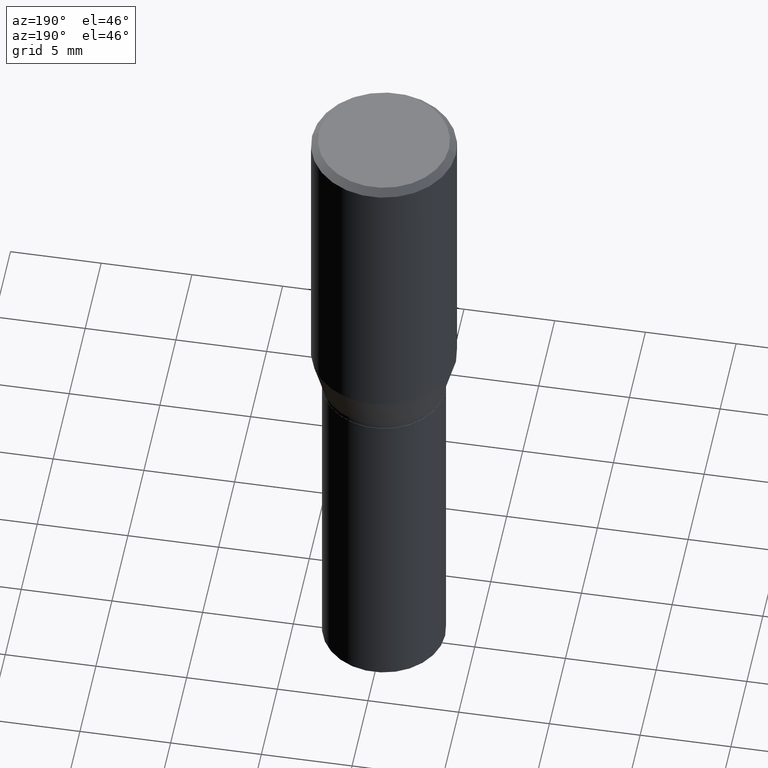
[diagram: clean part render]
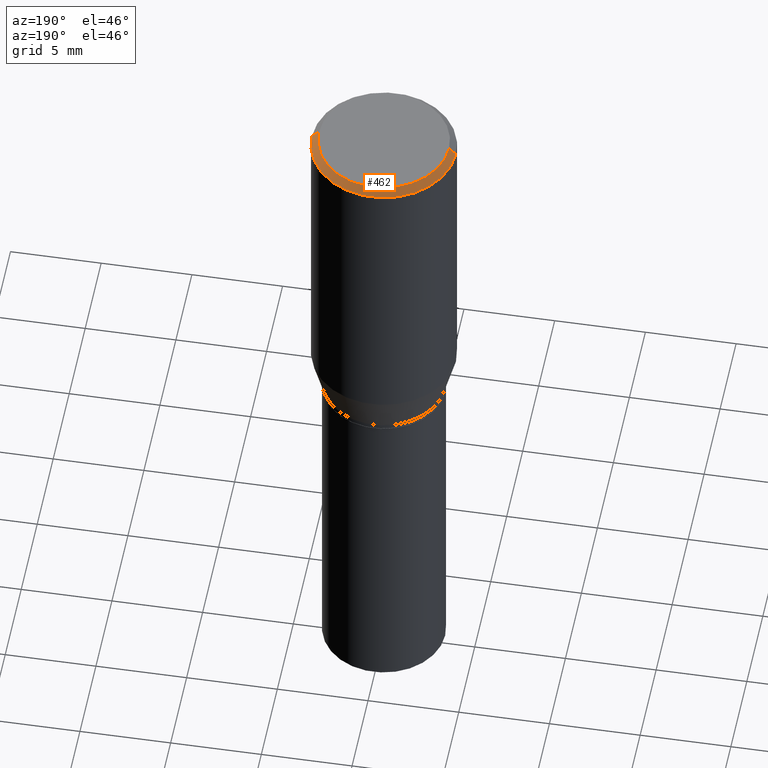
[diagram: same view with one face highlighted and labeled with its STEP entity id]
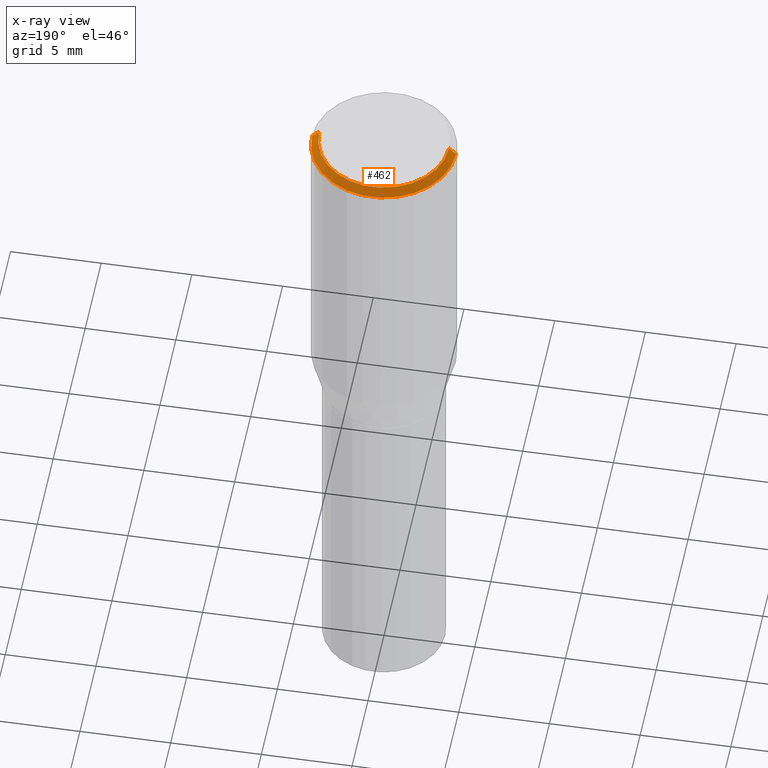
[diagram: x-ray of the same camera — body ghosted, the highlighted face saturated]
A machine part, auxiliary view. The second image highlights one B-rep face of the part: STEP entity #462.
The next image is the same camera in x-ray: the body ghosted, the highlighted face saturated — about 0% of this face is hidden behind the body in this view.
In plain terms, the highlighted conical surface has half-angle 45 deg.
Its self-contained STEP definition (entity closure, byte-faithful):
#2 = CARTESIAN_POINT ( 'NONE',  ( -0.1412500000000000144, 1.012529588264508555E-15, -4.362760153143304915E-17 ) ) ;
#7 = DIRECTION ( 'NONE',  ( -2.445468806185136597E-29, 3.491481338843145583E-15, 1.000000000000000000 ) ) ;
#18 = EDGE_CURVE ( 'NONE', #365, #278, #123, .T. ) ;
#51 = CIRCLE ( 'NONE', #304, 0.1562500000000000000 ) ;
#62 = ORIENTED_EDGE ( 'NONE', *, *, #18, .F. ) ;
#66 = AXIS2_PLACEMENT_3D ( 'NONE', #82, #7, #153 ) ;
#82 = CARTESIAN_POINT ( 'NONE',  ( 1.066899386337773103E-45, -1.523249566054587316E-31, -4.362760153142606033E-17 ) ) ;
#102 = DIRECTION ( 'NONE',  ( 2.445468806185136597E-29, -3.491481338843145583E-15, -1.000000000000000000 ) ) ;
#123 = CIRCLE ( 'NONE', #66, 0.1412500000000000144 ) ;
#153 = DIRECTION ( 'NONE',  ( 1.000000000000000000, -6.982962677686265922E-15, 4.874209154772796007E-29 ) ) ;
#156 = CARTESIAN_POINT ( 'NONE',  ( 0.1562500000000000000, -1.124325032234449083E-15, -0.01499999999999999944 ) ) ;
#160 = DIRECTION ( 'NONE',  ( 0.7071067811865483499, -7.319954787623257623E-15, -0.7071067811865466846 ) ) ;
#165 = CARTESIAN_POINT ( 'NONE',  ( 3.668203209277705088E-31, -5.237222008264718399E-17, -0.01499999999999999944 ) ) ;
#199 = CONICAL_SURFACE ( 'NONE', #284, 0.1562500000000000000, 0.7853981633974495002 ) ;
#202 = CARTESIAN_POINT ( 'NONE',  ( 0.1412500000000000144, -1.046685187209839144E-15, -4.362760153141894826E-17 ) ) ;
#206 = LINE ( 'NONE', #156, #313 ) ;
#228 = DIRECTION ( 'NONE',  ( -1.000000000000000000, 6.982962677686266711E-15, 0.000000000000000000 ) ) ;
#230 = CARTESIAN_POINT ( 'NONE',  ( 0.1562500000000000000, -1.143460138471126253E-15, -0.01499999999999999944 ) ) ;
#247 = CARTESIAN_POINT ( 'NONE',  ( -0.1562500000000000000, -5.502990786655347834E-17, -0.01499999999999999944 ) ) ;
#275 = EDGE_LOOP ( 'NONE', ( #62, #410, #419, #346 ) ) ;
#277 = EDGE_CURVE ( 'NONE', #278, #384, #434, .T. ) ;
#278 = VERTEX_POINT ( 'NONE', #2 ) ;
#283 = DIRECTION ( 'NONE',  ( -2.445468806185136597E-29, 3.491481338843145583E-15, 1.000000000000000000 ) ) ;
#284 = AXIS2_PLACEMENT_3D ( 'NONE', #290, #102, #228 ) ;
#290 = CARTESIAN_POINT ( 'NONE',  ( 3.668203209277705088E-31, -5.237222008264718399E-17, -0.01499999999999999944 ) ) ;
#304 = AXIS2_PLACEMENT_3D ( 'NONE', #165, #283, #395 ) ;
#308 = EDGE_CURVE ( 'NONE', #310, #384, #51, .T. ) ;
#309 = VECTOR ( 'NONE', #332, 39.37007874015748143 ) ;
#310 = VERTEX_POINT ( 'NONE', #230 ) ;
#313 = VECTOR ( 'NONE', #160, 39.37007874015748143 ) ;
#316 = FACE_OUTER_BOUND ( 'NONE', #275, .T. ) ;
#332 = DIRECTION ( 'NONE',  ( -0.7071067811865483499, 2.468850131082265738E-15, -0.7071067811865466846 ) ) ;
#333 = CARTESIAN_POINT ( 'NONE',  ( -0.1562500000000000000, 1.038715698305832094E-15, -0.01499999999999999944 ) ) ;
#346 = ORIENTED_EDGE ( 'NONE', *, *, #277, .F. ) ;
#365 = VERTEX_POINT ( 'NONE', #202 ) ;
#376 = EDGE_CURVE ( 'NONE', #365, #310, #206, .T. ) ;
#384 = VERTEX_POINT ( 'NONE', #247 ) ;
#395 = DIRECTION ( 'NONE',  ( 1.000000000000000000, -6.982962677686266711E-15, 0.000000000000000000 ) ) ;
#410 = ORIENTED_EDGE ( 'NONE', *, *, #376, .T. ) ;
#419 = ORIENTED_EDGE ( 'NONE', *, *, #308, .T. ) ;
#434 = LINE ( 'NONE', #333, #309 ) ;
#462 = ADVANCED_FACE ( 'NONE', ( #316 ), #199, .T. ) ;